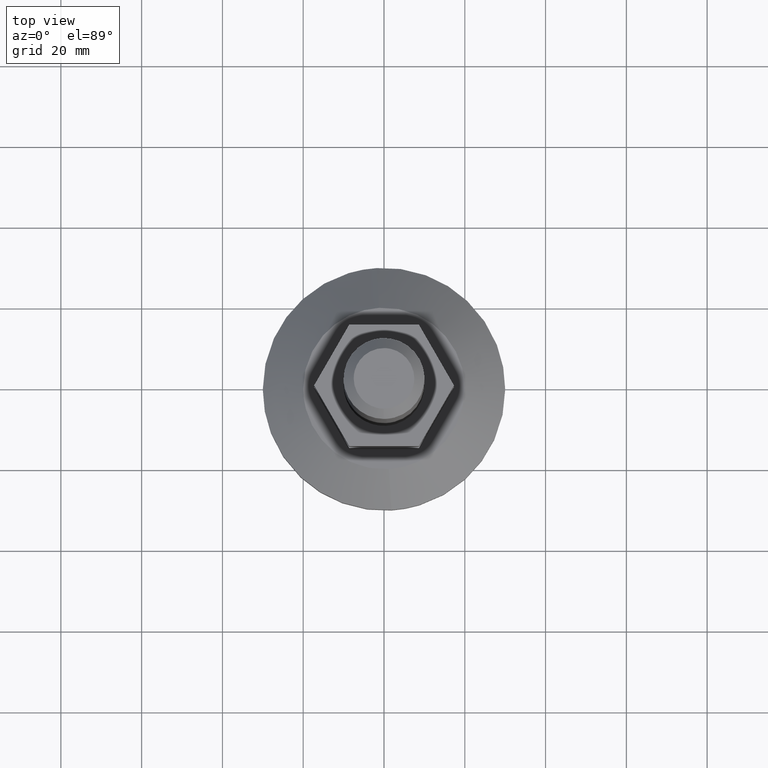
[diagram: clean part render]
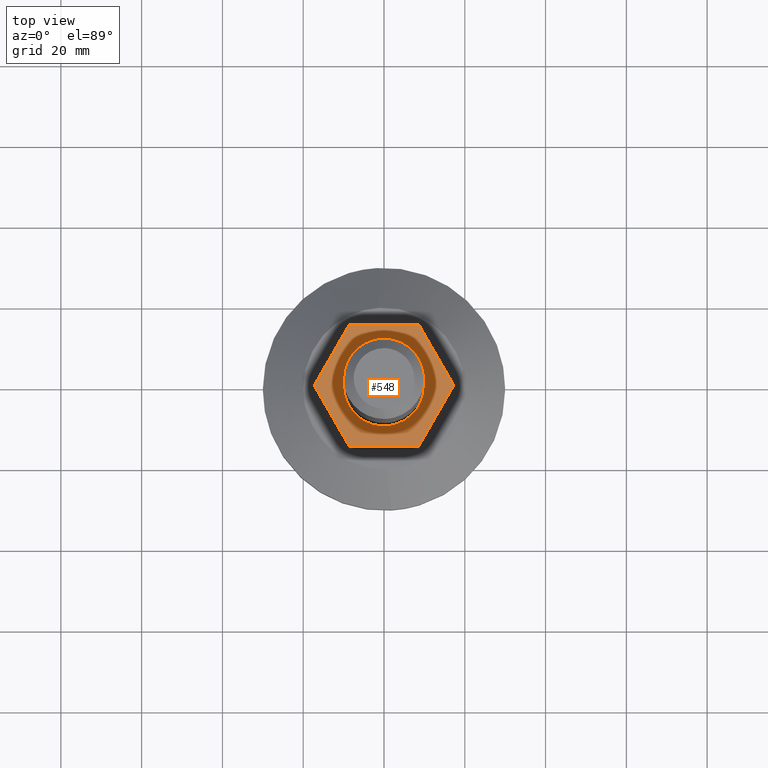
[diagram: same view with one face highlighted and labeled with its STEP entity id]
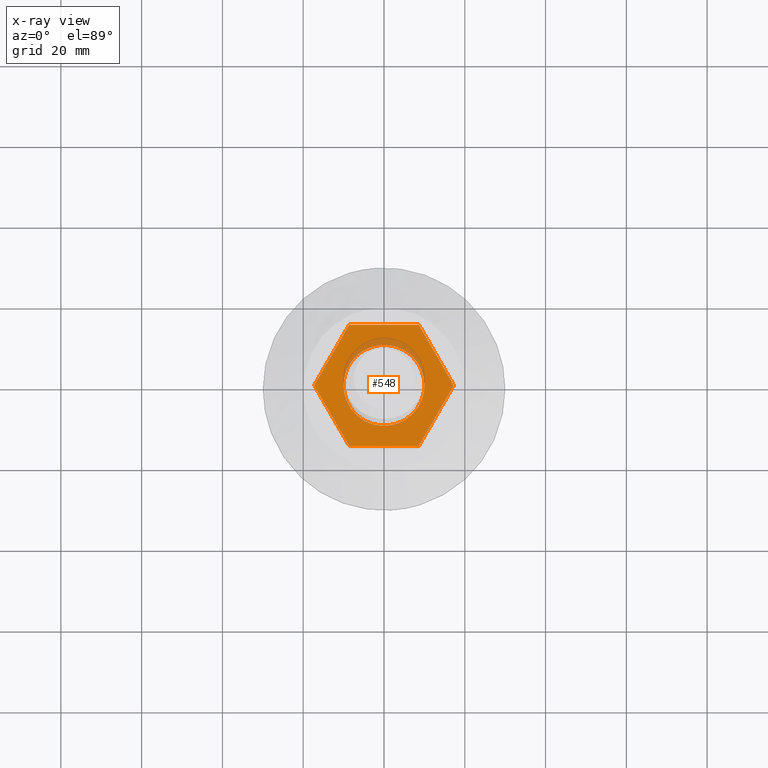
[diagram: x-ray of the same camera — body ghosted, the highlighted face saturated]
A machine part, top view. The second image highlights one B-rep face of the part: STEP entity #548.
The next image is the same camera in x-ray: the body ghosted, the highlighted face saturated — about 7% of this face is hidden behind the body in this view.
In plain terms, the highlighted face is a freeform B-spline surface patch.
Its self-contained STEP definition (entity closure, byte-faithful):
#389=CARTESIAN_POINT('',(-10.0,0.0,60.0));
#390=VERTEX_POINT('',#389);
#391=CARTESIAN_POINT('',(-0.784590957535620,-9.969173337311037,60.0));
#392=VERTEX_POINT('',#391);
#393=CARTESIAN_POINT('',(-10.0,0.0,60.0));
#394=CARTESIAN_POINT('',(-10.0,-9.243904916342872,59.999999999999993));
#395=CARTESIAN_POINT('',(-0.784590957535620,-9.969173337311037,60.0));
#403=(BOUNDED_CURVE()B_SPLINE_CURVE(2,(#393,#394,#395),.UNSPECIFIED.,.F.,.U.)B_SPLINE_CURVE_WITH_KNOTS((3,3),(0.0,0.236331300628345),.UNSPECIFIED.)CURVE()GEOMETRIC_REPRESENTATION_ITEM()RATIONAL_B_SPLINE_CURVE((1.0,0.723120658610378,0.969723356162587))REPRESENTATION_ITEM(''));
#404=EDGE_CURVE('',#390,#392,#403,.T.);
#413=CARTESIAN_POINT('',(0.784590957535622,9.969173337311037,60.0));
#414=VERTEX_POINT('',#413);
#420=CARTESIAN_POINT('',(0.784590957535620,9.969173337311037,60.0));
#421=CARTESIAN_POINT('',(0.392901070205878,9.999999999999998,60.000000000000007));
#422=CARTESIAN_POINT('',(0.0,10.0,60.0));
#423=CARTESIAN_POINT('',(-10.000000000000002,10.000000000000002,60.0));
#424=CARTESIAN_POINT('',(-10.0,0.0,60.0));
#432=(BOUNDED_CURVE()B_SPLINE_CURVE(2,(#420,#421,#422,#423,#424),.UNSPECIFIED.,.F.,.U.)B_SPLINE_CURVE_WITH_KNOTS((3,2,3),(0.736331300628345,0.750000000000000,1.0),.UNSPECIFIED.)CURVE()GEOMETRIC_REPRESENTATION_ITEM()RATIONAL_B_SPLINE_CURVE((0.969723356162587,0.983986122576170,1.0,0.707106781186548,1.0))REPRESENTATION_ITEM(''));
#433=EDGE_CURVE('',#414,#390,#432,.T.);
#456=CARTESIAN_POINT('',(10.0,0.0,60.0));
#457=VERTEX_POINT('',#456);
#458=CARTESIAN_POINT('',(-0.784590957535620,-9.969173337311037,60.0));
#459=CARTESIAN_POINT('',(-0.392901070205878,-9.999999999999998,60.000000000000007));
#460=CARTESIAN_POINT('',(0.0,-10.0,60.0));
#461=CARTESIAN_POINT('',(10.000000000000002,-10.000000000000002,60.0));
#462=CARTESIAN_POINT('',(10.0,0.0,60.0));
#470=(BOUNDED_CURVE()B_SPLINE_CURVE(2,(#458,#459,#460,#461,#462),.UNSPECIFIED.,.F.,.U.)B_SPLINE_CURVE_WITH_KNOTS((3,2,3),(0.236331300628345,0.250000000000000,0.500000000000000),.UNSPECIFIED.)CURVE()GEOMETRIC_REPRESENTATION_ITEM()RATIONAL_B_SPLINE_CURVE((0.969723356162587,0.983986122576170,1.0,0.707106781186548,1.0))REPRESENTATION_ITEM(''));
#471=EDGE_CURVE('',#392,#457,#470,.T.);
#473=CARTESIAN_POINT('',(10.0,0.0,60.0));
#474=CARTESIAN_POINT('',(10.0,9.243904916342872,59.999999999999993));
#475=CARTESIAN_POINT('',(0.784590957535620,9.969173337311037,60.0));
#483=(BOUNDED_CURVE()B_SPLINE_CURVE(2,(#473,#474,#475),.UNSPECIFIED.,.F.,.U.)B_SPLINE_CURVE_WITH_KNOTS((3,3),(0.500000000000000,0.736331300628345),.UNSPECIFIED.)CURVE()GEOMETRIC_REPRESENTATION_ITEM()RATIONAL_B_SPLINE_CURVE((1.0,0.723120658610378,0.969723356162587))REPRESENTATION_ITEM(''));
#484=EDGE_CURVE('',#457,#414,#483,.T.);
#493=CARTESIAN_POINT('',(-19.028269932938489,16.498499941854170,60.0));
#494=CARTESIAN_POINT('',(19.028270860982811,16.498499941854170,60.0));
#495=CARTESIAN_POINT('',(-19.028269932938489,-16.498500746516878,60.0));
#496=CARTESIAN_POINT('',(19.028270860982811,-16.498500746516878,60.0));
#497=B_SPLINE_SURFACE_WITH_KNOTS('',1,1,((#493,#495),(#494,#496)),.UNSPECIFIED.,.F.,.F.,.U.,(2,2),(2,2),(0.0,38.056540793921300),(0.0,32.997000688371060),.UNSPECIFIED.);
#498=CARTESIAN_POINT('',(-17.300000000000001,0.0,60.0));
#499=VERTEX_POINT('',#498);
#500=CARTESIAN_POINT('',(-8.639746000000001,15.0,60.0));
#501=VERTEX_POINT('',#500);
#502=CARTESIAN_POINT('',(-17.300000000000001,0.0,60.0));
#503=CARTESIAN_POINT('',(-8.639746000000001,15.0,60.0));
#504=QUASI_UNIFORM_CURVE('',1,(#502,#503),.UNSPECIFIED.,.F.,.U.);
#505=EDGE_CURVE('',#499,#501,#504,.T.);
#506=ORIENTED_EDGE('',*,*,#505,.F.);
#507=CARTESIAN_POINT('',(-8.639746000000001,-15.0,60.0));
#508=VERTEX_POINT('',#507);
#509=CARTESIAN_POINT('',(-8.639746000000001,-15.0,60.0));
#510=CARTESIAN_POINT('',(-17.300000000000001,0.0,60.0));
#511=QUASI_UNIFORM_CURVE('',1,(#509,#510),.UNSPECIFIED.,.F.,.U.);
#512=EDGE_CURVE('',#508,#499,#511,.T.);
#513=ORIENTED_EDGE('',*,*,#512,.F.);
#514=CARTESIAN_POINT('',(8.639746000000001,-15.0,60.0));
#515=VERTEX_POINT('',#514);
#516=CARTESIAN_POINT('',(8.639746000000001,-15.0,60.0));
#517=CARTESIAN_POINT('',(-8.639746000000001,-15.0,60.0));
#518=QUASI_UNIFORM_CURVE('',1,(#516,#517),.UNSPECIFIED.,.F.,.U.);
#519=EDGE_CURVE('',#515,#508,#518,.T.);
#520=ORIENTED_EDGE('',*,*,#519,.F.);
#521=CARTESIAN_POINT('',(17.300000000000001,0.0,60.0));
#522=VERTEX_POINT('',#521);
#523=CARTESIAN_POINT('',(17.300000000000001,0.0,60.0));
#524=CARTESIAN_POINT('',(8.639746000000001,-15.0,60.0));
#525=QUASI_UNIFORM_CURVE('',1,(#523,#524),.UNSPECIFIED.,.F.,.U.);
#526=EDGE_CURVE('',#522,#515,#525,.T.);
#527=ORIENTED_EDGE('',*,*,#526,.F.);
#528=CARTESIAN_POINT('',(8.639746000000001,15.0,60.0));
#529=VERTEX_POINT('',#528);
#530=CARTESIAN_POINT('',(8.639746000000001,15.0,60.0));
#531=CARTESIAN_POINT('',(17.300000000000001,0.0,60.0));
#532=QUASI_UNIFORM_CURVE('',1,(#530,#531),.UNSPECIFIED.,.F.,.U.);
#533=EDGE_CURVE('',#529,#522,#532,.T.);
#534=ORIENTED_EDGE('',*,*,#533,.F.);
#535=CARTESIAN_POINT('',(-8.639746000000001,15.0,60.0));
#536=CARTESIAN_POINT('',(8.639746000000001,15.0,60.0));
#537=QUASI_UNIFORM_CURVE('',1,(#535,#536),.UNSPECIFIED.,.F.,.U.);
#538=EDGE_CURVE('',#501,#529,#537,.T.);
#539=ORIENTED_EDGE('',*,*,#538,.F.);
#540=EDGE_LOOP('',(#506,#513,#520,#527,#534,#539));
#541=FACE_OUTER_BOUND('',#540,.T.);
#542=ORIENTED_EDGE('',*,*,#484,.F.);
#543=ORIENTED_EDGE('',*,*,#471,.F.);
#544=ORIENTED_EDGE('',*,*,#404,.F.);
#545=ORIENTED_EDGE('',*,*,#433,.F.);
#546=EDGE_LOOP('',(#542,#543,#544,#545));
#547=FACE_BOUND('',#546,.T.);
#548=ADVANCED_FACE('',(#541,#547),#497,.F.);